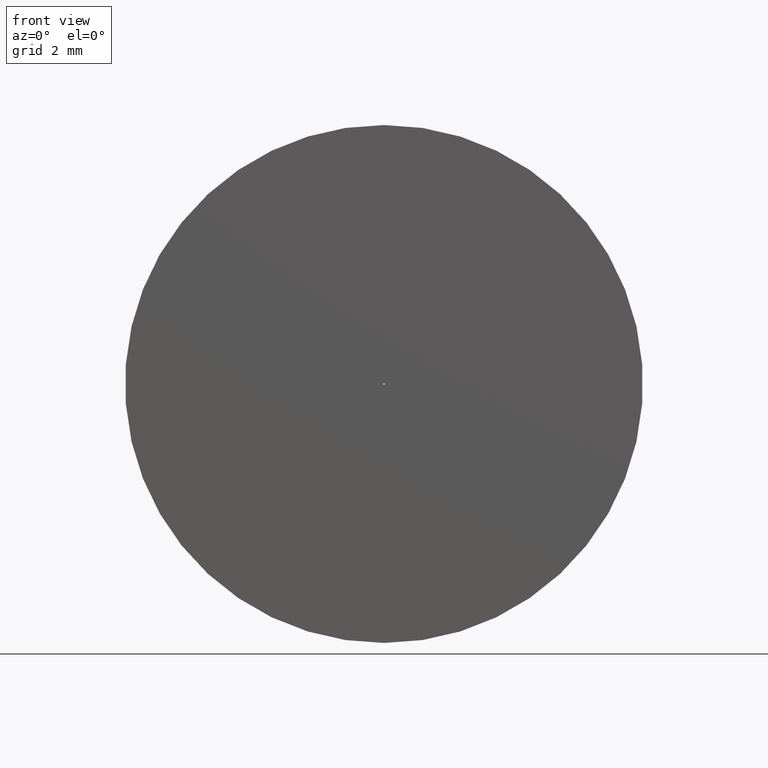
[diagram: clean part render]
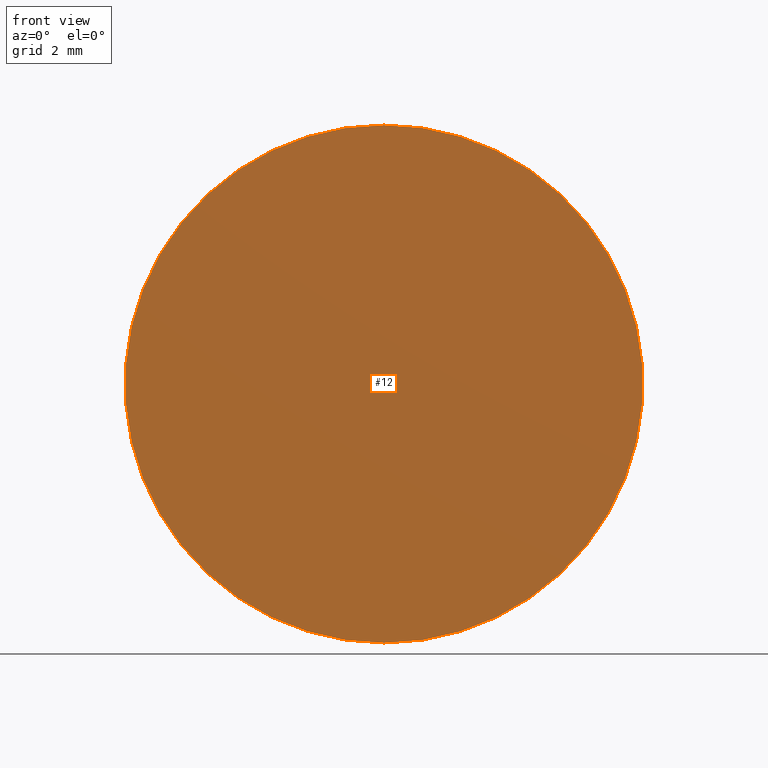
[diagram: same view with one face highlighted and labeled with its STEP entity id]
A machine part, front view. The second image highlights one B-rep face of the part: STEP entity #12.
In plain terms, the highlighted planar face has unit normal (0, 1, 0).
Its self-contained STEP definition (entity closure, byte-faithful):
#3 = CARTESIAN_POINT ( 'NONE',  ( 0.000000000000000000, 0.000000000000000000, 0.000000000000000000 ) ) ;
#4 = DIRECTION ( 'NONE',  ( 0.000000000000000000, 1.000000000000000000, 0.000000000000000000 ) ) ;
#5 = DIRECTION ( 'NONE',  ( 0.000000000000000000, 0.000000000000000000, 1.000000000000000000 ) ) ;
#9 = DIRECTION ( 'NONE',  ( 0.000000000000000000, 0.000000000000000000, 1.000000000000000000 ) ) ;
#11 = DIRECTION ( 'NONE',  ( 0.000000000000000000, 1.000000000000000000, 0.000000000000000000 ) ) ;
#12 = ADVANCED_FACE ( 'NONE', ( #21, #224 ), #35, .F. ) ;
#13 = AXIS2_PLACEMENT_3D ( 'NONE', #214, #232, #79 ) ;
#19 = DIRECTION ( 'NONE',  ( 0.000000000000000000, 1.000000000000000000, 0.000000000000000000 ) ) ;
#21 = FACE_OUTER_BOUND ( 'NONE', #223, .T. ) ;
#35 = PLANE ( 'NONE',  #144 ) ;
#43 = VERTEX_POINT ( 'NONE', #128 ) ;
#49 = DIRECTION ( 'NONE',  ( 0.000000000000000000, -0.000000000000000000, 1.000000000000000000 ) ) ;
#56 = CARTESIAN_POINT ( 'NONE',  ( 0.000000000000000000, 0.000000000000000000, 0.000000000000000000 ) ) ;
#59 = CIRCLE ( 'NONE', #83, 4.750000000000000000 ) ;
#62 = VERTEX_POINT ( 'NONE', #126 ) ;
#79 = DIRECTION ( 'NONE',  ( 0.000000000000000000, 0.000000000000000000, 1.000000000000000000 ) ) ;
#83 = AXIS2_PLACEMENT_3D ( 'NONE', #3, #117, #5 ) ;
#87 = ORIENTED_EDGE ( 'NONE', *, *, #162, .T. ) ;
#96 = CIRCLE ( 'NONE', #13, 4.750000000000000000 ) ;
#117 = DIRECTION ( 'NONE',  ( 0.000000000000000000, 1.000000000000000000, 0.000000000000000000 ) ) ;
#119 = DIRECTION ( 'NONE',  ( 0.000000000000000000, 0.000000000000000000, 1.000000000000000000 ) ) ;
#125 = CIRCLE ( 'NONE', #219, 0.01250000000000000069 ) ;
#126 = CARTESIAN_POINT ( 'NONE',  ( 0.000000000000000000, 0.000000000000000000, -0.01250000000000000069 ) ) ;
#128 = CARTESIAN_POINT ( 'NONE',  ( 1.530808498934191586E-18, 0.000000000000000000, 0.01250000000000000069 ) ) ;
#144 = AXIS2_PLACEMENT_3D ( 'NONE', #230, #19, #49 ) ;
#145 = ORIENTED_EDGE ( 'NONE', *, *, #204, .F. ) ;
#152 = CIRCLE ( 'NONE', #198, 0.01250000000000000069 ) ;
#155 = CARTESIAN_POINT ( 'NONE',  ( 0.000000000000000000, 0.000000000000000000, -4.750000000000000000 ) ) ;
#160 = CARTESIAN_POINT ( 'NONE',  ( 0.000000000000000000, 0.000000000000000000, 0.000000000000000000 ) ) ;
#162 = EDGE_CURVE ( 'NONE', #62, #43, #125, .T. ) ;
#168 = ORIENTED_EDGE ( 'NONE', *, *, #172, .F. ) ;
#172 = EDGE_CURVE ( 'NONE', #207, #191, #59, .T. ) ;
#185 = EDGE_LOOP ( 'NONE', ( #87, #186 ) ) ;
#186 = ORIENTED_EDGE ( 'NONE', *, *, #228, .T. ) ;
#191 = VERTEX_POINT ( 'NONE', #155 ) ;
#198 = AXIS2_PLACEMENT_3D ( 'NONE', #160, #11, #9 ) ;
#204 = EDGE_CURVE ( 'NONE', #191, #207, #96, .T. ) ;
#207 = VERTEX_POINT ( 'NONE', #249 ) ;
#214 = CARTESIAN_POINT ( 'NONE',  ( 0.000000000000000000, 0.000000000000000000, 0.000000000000000000 ) ) ;
#219 = AXIS2_PLACEMENT_3D ( 'NONE', #56, #4, #119 ) ;
#223 = EDGE_LOOP ( 'NONE', ( #145, #168 ) ) ;
#224 = FACE_BOUND ( 'NONE', #185, .T. ) ;
#228 = EDGE_CURVE ( 'NONE', #43, #62, #152, .T. ) ;
#230 = CARTESIAN_POINT ( 'NONE',  ( 0.000000000000000000, 0.000000000000000000, 0.000000000000000000 ) ) ;
#232 = DIRECTION ( 'NONE',  ( 0.000000000000000000, 1.000000000000000000, 0.000000000000000000 ) ) ;
#249 = CARTESIAN_POINT ( 'NONE',  ( 5.817072295949927426E-16, 0.000000000000000000, 4.750000000000000000 ) ) ;